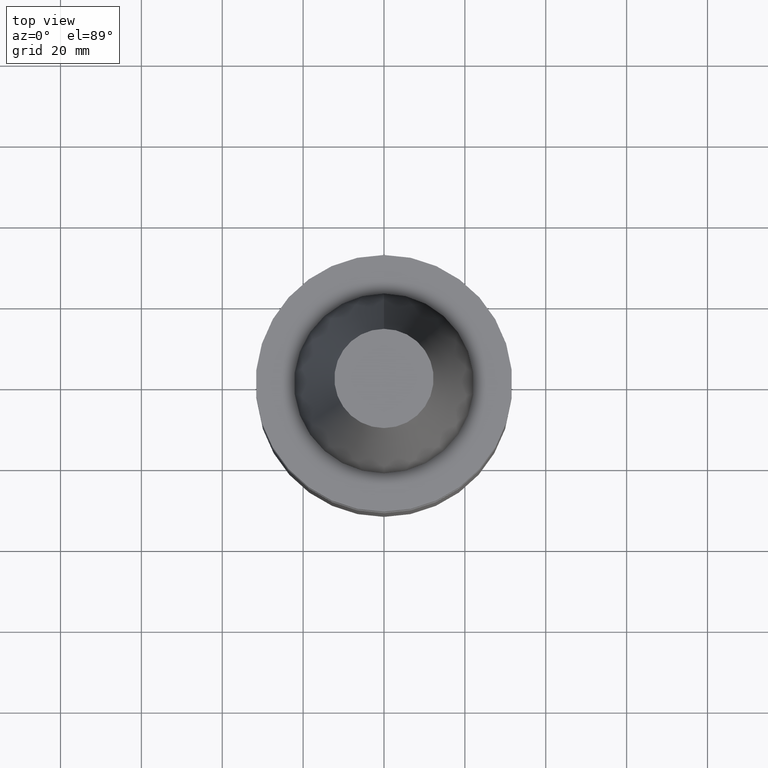
[diagram: clean part render]
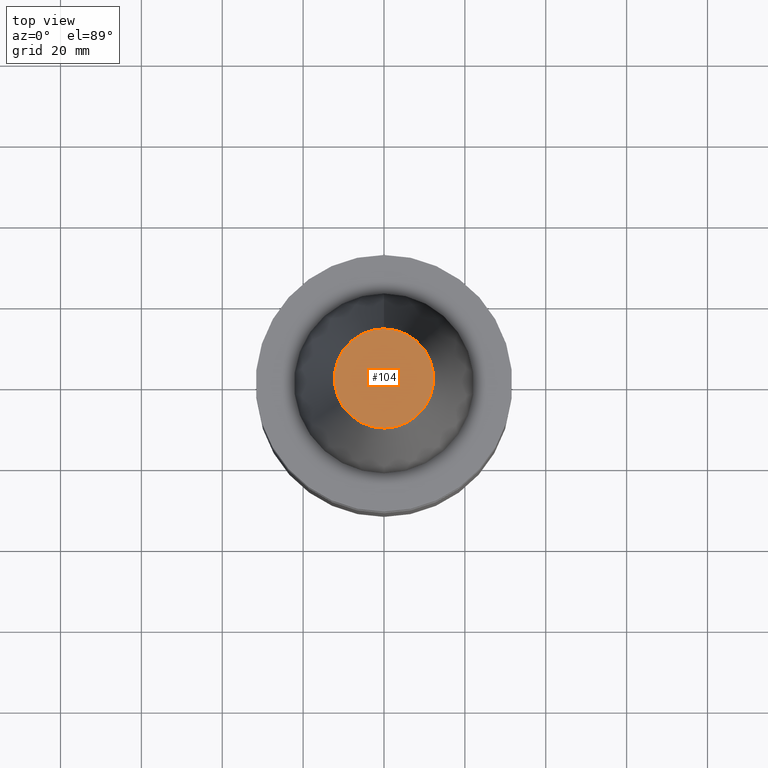
[diagram: same view with one face highlighted and labeled with its STEP entity id]
A machine part, top view. The second image highlights one B-rep face of the part: STEP entity #104.
In plain terms, the highlighted planar face has unit normal (-0, -0, 1).
Its self-contained STEP definition (entity closure, byte-faithful):
#104=ADVANCED_FACE('Unnamed[1]',(#227),#228,.T.);
#109=EDGE_CURVE('Unnamed[1]',#235,#235,#236,.T.);
#227=FACE_OUTER_BOUND('',#377,.T.);
#228=PLANE('',#378);
#235=VERTEX_POINT('',#387);
#236=CIRCLE('',#388,12.271875);
#377=EDGE_LOOP('',(#524));
#378=AXIS2_PLACEMENT_3D('',#525,#526,#527);
#387=CARTESIAN_POINT('',(-4.17910720209035E-015,12.271875,68.2500000000002));
#388=AXIS2_PLACEMENT_3D('',#534,#535,#536);
#524=ORIENTED_EDGE('',*,*,#109,.F.);
#525=CARTESIAN_POINT('',(-4.17910720209035E-015,6.13593749999994,68.2500000000002));
#526=DIRECTION('',(-6.12323399573677E-017,-1.22464679914735E-016,1.0));
#527=DIRECTION('',(1.23259516440783E-032,-1.0,-1.22464679914735E-016));
#534=CARTESIAN_POINT('',(-4.17910720209035E-015,-6.39886037137663E-014,68.2500000000002));
#535=DIRECTION('',(6.12323399573677E-017,4.57083562979896E-016,-1.0));
#536=DIRECTION('',(-3.28154488480783E-032,1.0,4.57083562979896E-016));